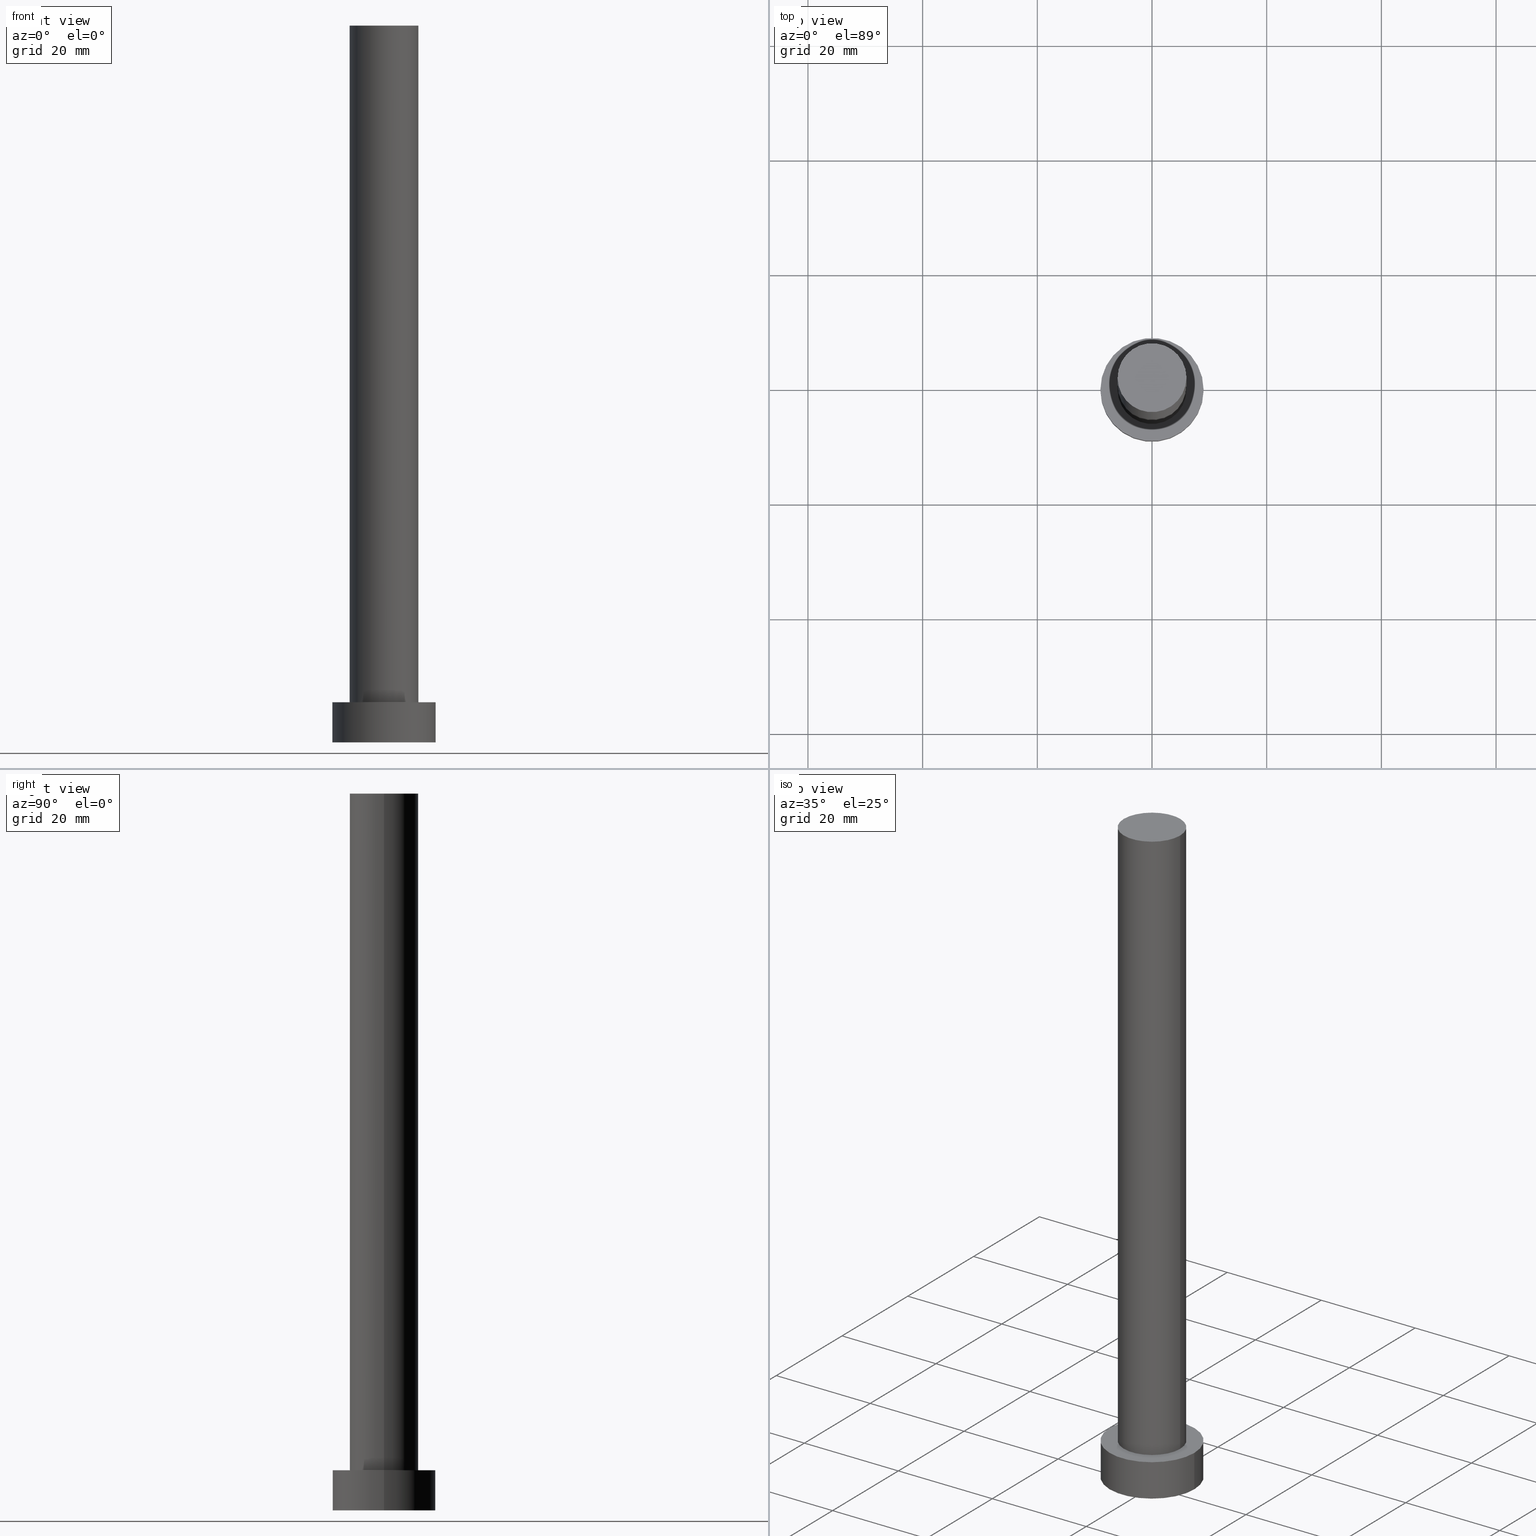
[diagram: canonical four-view strip — front | top / right | iso, engineering-drawing reading convention]
A machine part, canonical four-view strip (front | top / right | iso — engineering-drawing reading convention). The complete STEP part file that produces these views, byte-faithful:
ISO-10303-21;
HEADER;
FILE_DESCRIPTION (( 'STEP AP203' ),
    '1' );
FILE_NAME ('c02a.STEP',
    '2023-02-13T10:14:40',
    ( '' ),
    ( '' ),
    'SwSTEP 2.0',
    'SolidWorks 2019',
    '' );
FILE_SCHEMA (( 'CONFIG_CONTROL_DESIGN' ));
ENDSEC;

DATA;
#1 = CARTESIAN_POINT ( 'NONE',  ( 9.000000000000000000, 1.102182119232617714E-15, 7.000000000000000000 ) ) ;
#2 = MANIFOLD_SOLID_BREP ( 'P�idat vysunut�m3', #211 ) ;
#3 = CARTESIAN_POINT ( 'NONE',  ( -6.000000000000000888, 0.000000000000000000, 125.0000000000000000 ) ) ;
#4 = CC_DESIGN_PERSON_AND_ORGANIZATION_ASSIGNMENT ( #197, #109, ( #71 ) ) ;
#5 = DIRECTION ( 'NONE',  ( -0.000000000000000000, -0.000000000000000000, -1.000000000000000000 ) ) ;
#6 = COORDINATED_UNIVERSAL_TIME_OFFSET ( 1, 0, .AHEAD. ) ;
#7 = AXIS2_PLACEMENT_3D ( 'NONE', #64, #219, #30 ) ;
#8 = APPLICATION_CONTEXT ( 'configuration controlled 3d designs of mechanical parts and assemblies' ) ;
#9 = APPLICATION_PROTOCOL_DEFINITION ( 'international standard', 'config_control_design', 1994, #8 ) ;
#10 = CARTESIAN_POINT ( 'NONE',  ( 0.000000000000000000, 0.000000000000000000, 7.000000000000000000 ) ) ;
#11 = CIRCLE ( 'NONE', #52, 9.000000000000000000 ) ;
#12 = ORIENTED_EDGE ( 'NONE', *, *, #148, .F. ) ;
#13 = ORIENTED_EDGE ( 'NONE', *, *, #222, .F. ) ;
#14 = AXIS2_PLACEMENT_3D ( 'NONE', #198, #194, #84 ) ;
#15 = CARTESIAN_POINT ( 'NONE',  ( 0.000000000000000000, 0.000000000000000000, 0.000000000000000000 ) ) ;
#16 = EDGE_CURVE ( 'NONE', #230, #59, #137, .T. ) ;
#17 = VERTEX_POINT ( 'NONE', #248 ) ;
#18 = AXIS2_PLACEMENT_3D ( 'NONE', #210, #175, #82 ) ;
#19 = CARTESIAN_POINT ( 'NONE',  ( 6.000000000000000888, 7.347880794884120722E-16, 125.0000000000000000 ) ) ;
#20 = CARTESIAN_POINT ( 'NONE',  ( -9.000000000000000000, 0.000000000000000000, 7.000000000000000000 ) ) ;
#21 = DIRECTION ( 'NONE',  ( 1.000000000000000000, 0.000000000000000000, 0.000000000000000000 ) ) ;
#22 = DIRECTION ( 'NONE',  ( -1.000000000000000000, 0.000000000000000000, 0.000000000000000000 ) ) ;
#23 = PERSON_AND_ORGANIZATION_ROLE ( 'design_owner' ) ;
#24 = PERSON_AND_ORGANIZATION ( #111, #236 ) ;
#25 = ADVANCED_FACE ( 'NONE', ( #72 ), #36, .F. ) ;
#26 = FACE_OUTER_BOUND ( 'NONE', #33, .T. ) ;
#27 = PERSON_AND_ORGANIZATION ( #111, #236 ) ;
#28 = DIRECTION ( 'NONE',  ( 1.000000000000000000, 0.000000000000000000, 0.000000000000000000 ) ) ;
#29 = CC_DESIGN_PERSON_AND_ORGANIZATION_ASSIGNMENT ( #68, #112, ( #83 ) ) ;
#30 = DIRECTION ( 'NONE',  ( 1.000000000000000000, 0.000000000000000000, 0.000000000000000000 ) ) ;
#31 = SECURITY_CLASSIFICATION_LEVEL ( 'unclassified' ) ;
#32 = CIRCLE ( 'NONE', #223, 6.000000000000000888 ) ;
#33 = EDGE_LOOP ( 'NONE', ( #186, #13, #206, #157 ) ) ;
#34 = ORIENTED_EDGE ( 'NONE', *, *, #222, .T. ) ;
#35 =( GEOMETRIC_REPRESENTATION_CONTEXT ( 3 ) GLOBAL_UNCERTAINTY_ASSIGNED_CONTEXT ( ( #185 ) ) GLOBAL_UNIT_ASSIGNED_CONTEXT ( ( #85, #162, #242 ) ) REPRESENTATION_CONTEXT ( 'NONE', 'WORKASPACE' ) );
#36 = PLANE ( 'NONE',  #108 ) ;
#37 = EDGE_CURVE ( 'NONE', #95, #153, #11, .T. ) ;
#38 = CALENDAR_DATE ( 2023, 13, 2 ) ;
#39 = ORIENTED_EDGE ( 'NONE', *, *, #148, .T. ) ;
#40 = DIRECTION ( 'NONE',  ( -0.000000000000000000, -0.000000000000000000, -1.000000000000000000 ) ) ;
#41 = AXIS2_PLACEMENT_3D ( 'NONE', #199, #45, #146 ) ;
#42 = DIRECTION ( 'NONE',  ( -0.000000000000000000, -0.000000000000000000, -1.000000000000000000 ) ) ;
#43 = FACE_OUTER_BOUND ( 'NONE', #204, .T. ) ;
#44 = CALENDAR_DATE ( 2023, 13, 2 ) ;
#45 = DIRECTION ( 'NONE',  ( 0.000000000000000000, 0.000000000000000000, 1.000000000000000000 ) ) ;
#46 = CC_DESIGN_PERSON_AND_ORGANIZATION_ASSIGNMENT ( #218, #23, ( #136 ) ) ;
#47 = APPROVAL_PERSON_ORGANIZATION ( #24, #252, #131 ) ;
#48 = ADVANCED_BREP_SHAPE_REPRESENTATION ( 'c02a', ( #2, #7 ), #35 ) ;
#49 = COORDINATED_UNIVERSAL_TIME_OFFSET ( 1, 0, .AHEAD. ) ;
#50 = DIRECTION ( 'NONE',  ( 0.000000000000000000, 0.000000000000000000, 1.000000000000000000 ) ) ;
#51 = EDGE_CURVE ( 'NONE', #59, #184, #215, .T. ) ;
#52 = AXIS2_PLACEMENT_3D ( 'NONE', #15, #54, #203 ) ;
#53 = LOCAL_TIME ( 11, 14, 40.00000000000000000, #144 ) ;
#54 = DIRECTION ( 'NONE',  ( 0.000000000000000000, 0.000000000000000000, 1.000000000000000000 ) ) ;
#55 = ORIENTED_EDGE ( 'NONE', *, *, #100, .F. ) ;
#56 = PRODUCT_RELATED_PRODUCT_CATEGORY ( 'detail', '', ( #136 ) ) ;
#57 = CIRCLE ( 'NONE', #246, 9.000000000000000000 ) ;
#58 = APPROVAL_ROLE ( '' ) ;
#59 = VERTEX_POINT ( 'NONE', #102 ) ;
#60 = ORIENTED_EDGE ( 'NONE', *, *, #135, .T. ) ;
#61 = PERSON_AND_ORGANIZATION ( #111, #236 ) ;
#62 = LINE ( 'NONE', #143, #156 ) ;
#63 = CYLINDRICAL_SURFACE ( 'NONE', #97, 6.000000000000000888 ) ;
#64 = CARTESIAN_POINT ( 'NONE',  ( 0.000000000000000000, 0.000000000000000000, 0.000000000000000000 ) ) ;
#65 = ADVANCED_FACE ( 'NONE', ( #196, #239 ), #124, .T. ) ;
#66 = CARTESIAN_POINT ( 'NONE',  ( 0.000000000000000000, 0.000000000000000000, 125.0000000000000000 ) ) ;
#67 = DATE_TIME_ROLE ( 'creation_date' ) ;
#68 = PERSON_AND_ORGANIZATION ( #111, #236 ) ;
#69 = CYLINDRICAL_SURFACE ( 'NONE', #188, 9.000000000000000000 ) ;
#70 = DIRECTION ( 'NONE',  ( -0.000000000000000000, -0.000000000000000000, -1.000000000000000000 ) ) ;
#71 = PRODUCT_DEFINITION ( 'NEZN�M�', '', #83, #77 ) ;
#72 = FACE_OUTER_BOUND ( 'NONE', #75, .T. ) ;
#73 = SECURITY_CLASSIFICATION ( '', '', #31 ) ;
#74 = CALENDAR_DATE ( 2023, 13, 2 ) ;
#75 = EDGE_LOOP ( 'NONE', ( #250, #117 ) ) ;
#76 = EDGE_LOOP ( 'NONE', ( #228, #55 ) ) ;
#77 = DESIGN_CONTEXT ( 'detailed design', #93, 'design' ) ;
#78 = ORIENTED_EDGE ( 'NONE', *, *, #231, .T. ) ;
#79 = CC_DESIGN_PERSON_AND_ORGANIZATION_ASSIGNMENT ( #164, #244, ( #83 ) ) ;
#80 = DATE_AND_TIME ( #38, #128 ) ;
#81 = CARTESIAN_POINT ( 'NONE',  ( 0.000000000000000000, 0.000000000000000000, 125.0000000000000000 ) ) ;
#82 = DIRECTION ( 'NONE',  ( 1.000000000000000000, 0.000000000000000000, 0.000000000000000000 ) ) ;
#83 = PRODUCT_DEFINITION_FORMATION_WITH_SPECIFIED_SOURCE ( 'LIBOVOLN�', '', #136, .NOT_KNOWN. ) ;
#84 = DIRECTION ( 'NONE',  ( 1.000000000000000000, 0.000000000000000000, -0.000000000000000000 ) ) ;
#85 =( LENGTH_UNIT ( ) NAMED_UNIT ( * ) SI_UNIT ( .MILLI., .METRE. ) );
#86 = VECTOR ( 'NONE', #126, 1000.000000000000000 ) ;
#87 = DIRECTION ( 'NONE',  ( -1.000000000000000000, 0.000000000000000000, 0.000000000000000000 ) ) ;
#88 = CALENDAR_DATE ( 2023, 13, 2 ) ;
#89 = DIRECTION ( 'NONE',  ( 1.000000000000000000, 0.000000000000000000, 0.000000000000000000 ) ) ;
#90 = PERSON_AND_ORGANIZATION_ROLE ( 'classification_officer' ) ;
#91 = CIRCLE ( 'NONE', #123, 9.000000000000000000 ) ;
#92 = EDGE_CURVE ( 'NONE', #153, #95, #57, .T. ) ;
#93 = APPLICATION_CONTEXT ( 'configuration controlled 3d designs of mechanical parts and assemblies' ) ;
#94 = VERTEX_POINT ( 'NONE', #20 ) ;
#95 = VERTEX_POINT ( 'NONE', #122 ) ;
#96 = VECTOR ( 'NONE', #42, 1000.000000000000000 ) ;
#97 = AXIS2_PLACEMENT_3D ( 'NONE', #234, #214, #22 ) ;
#98 = EDGE_LOOP ( 'NONE', ( #207, #60, #116, #251 ) ) ;
#99 = ORIENTED_EDGE ( 'NONE', *, *, #140, .T. ) ;
#100 = EDGE_CURVE ( 'NONE', #184, #59, #119, .T. ) ;
#101 = DATE_AND_TIME ( #74, #229 ) ;
#102 = CARTESIAN_POINT ( 'NONE',  ( -6.000000000000000888, 0.000000000000000000, 7.000000000000000000 ) ) ;
#103 = APPROVAL ( #154, 'NEUR�EN�' ) ;
#104 = DATE_AND_TIME ( #44, #53 ) ;
#105 = CARTESIAN_POINT ( 'NONE',  ( 9.000000000000000000, 1.102182119232617714E-15, 7.000000000000000000 ) ) ;
#106 = CYLINDRICAL_SURFACE ( 'NONE', #165, 6.000000000000000888 ) ;
#107 = APPROVAL_STATUS ( 'not_yet_approved' ) ;
#108 = AXIS2_PLACEMENT_3D ( 'NONE', #151, #189, #224 ) ;
#109 = PERSON_AND_ORGANIZATION_ROLE ( 'creator' ) ;
#110 = CC_DESIGN_SECURITY_CLASSIFICATION ( #73, ( #83 ) ) ;
#111 = PERSON ( 'NEUR�EN�', 'NEUR�EN�', 'NEUR�EN�', ('NEUR�EN�'), ('NEUR�EN�'), ('NEUR�EN�') ) ;
#112 = PERSON_AND_ORGANIZATION_ROLE ( 'design_supplier' ) ;
#113 = ADVANCED_FACE ( 'NONE', ( #174 ), #232, .T. ) ;
#114 = AXIS2_PLACEMENT_3D ( 'NONE', #66, #208, #255 ) ;
#115 = CIRCLE ( 'NONE', #41, 6.000000000000000888 ) ;
#116 = ORIENTED_EDGE ( 'NONE', *, *, #92, .T. ) ;
#117 = ORIENTED_EDGE ( 'NONE', *, *, #92, .F. ) ;
#118 = ORIENTED_EDGE ( 'NONE', *, *, #16, .T. ) ;
#119 = CIRCLE ( 'NONE', #192, 6.000000000000000888 ) ;
#120 = CARTESIAN_POINT ( 'NONE',  ( -6.000000000000000888, 0.000000000000000000, 125.0000000000000000 ) ) ;
#121 = EDGE_CURVE ( 'NONE', #94, #95, #62, .T. ) ;
#122 = CARTESIAN_POINT ( 'NONE',  ( -9.000000000000000000, 0.000000000000000000, 0.000000000000000000 ) ) ;
#123 = AXIS2_PLACEMENT_3D ( 'NONE', #221, #50, #89 ) ;
#124 = PLANE ( 'NONE',  #14 ) ;
#125 = DIRECTION ( 'NONE',  ( 0.000000000000000000, 0.000000000000000000, 1.000000000000000000 ) ) ;
#126 = DIRECTION ( 'NONE',  ( -0.000000000000000000, -0.000000000000000000, -1.000000000000000000 ) ) ;
#127 = APPROVAL_DATE_TIME ( #104, #252 ) ;
#128 = LOCAL_TIME ( 11, 14, 40.00000000000000000, #254 ) ;
#129 = CALENDAR_DATE ( 2023, 13, 2 ) ;
#130 = CC_DESIGN_DATE_AND_TIME_ASSIGNMENT ( #160, #67, ( #71 ) ) ;
#131 = APPROVAL_ROLE ( '' ) ;
#132 = MECHANICAL_CONTEXT ( 'NONE', #8, 'mechanical' ) ;
#133 = APPROVAL_PERSON_ORGANIZATION ( #61, #103, #58 ) ;
#134 = DIRECTION ( 'NONE',  ( -1.000000000000000000, 0.000000000000000000, 0.000000000000000000 ) ) ;
#135 = EDGE_CURVE ( 'NONE', #227, #153, #213, .T. ) ;
#136 = PRODUCT ( 'c02a', 'c02a', '', ( #132 ) ) ;
#137 = LINE ( 'NONE', #120, #163 ) ;
#138 = AXIS2_PLACEMENT_3D ( 'NONE', #245, #182, #28 ) ;
#139 = EDGE_LOOP ( 'NONE', ( #34, #141 ) ) ;
#140 = EDGE_CURVE ( 'NONE', #230, #17, #32, .T. ) ;
#141 = ORIENTED_EDGE ( 'NONE', *, *, #171, .T. ) ;
#142 = DIRECTION ( 'NONE',  ( 0.000000000000000000, 0.000000000000000000, 1.000000000000000000 ) ) ;
#143 = CARTESIAN_POINT ( 'NONE',  ( -9.000000000000000000, 0.000000000000000000, 7.000000000000000000 ) ) ;
#144 = COORDINATED_UNIVERSAL_TIME_OFFSET ( 1, 0, .AHEAD. ) ;
#145 = CARTESIAN_POINT ( 'NONE',  ( 0.000000000000000000, 0.000000000000000000, 7.000000000000000000 ) ) ;
#146 = DIRECTION ( 'NONE',  ( 1.000000000000000000, 0.000000000000000000, 0.000000000000000000 ) ) ;
#147 = LOCAL_TIME ( 11, 14, 40.00000000000000000, #217 ) ;
#148 = EDGE_CURVE ( 'NONE', #17, #184, #159, .T. ) ;
#149 = DIRECTION ( 'NONE',  ( -1.000000000000000000, 0.000000000000000000, 0.000000000000000000 ) ) ;
#150 = PERSON_AND_ORGANIZATION ( #111, #236 ) ;
#151 = CARTESIAN_POINT ( 'NONE',  ( 0.000000000000000000, 0.000000000000000000, 0.000000000000000000 ) ) ;
#152 = LOCAL_TIME ( 11, 14, 40.00000000000000000, #6 ) ;
#153 = VERTEX_POINT ( 'NONE', #158 ) ;
#154 = APPROVAL_STATUS ( 'not_yet_approved' ) ;
#155 = DIRECTION ( 'NONE',  ( -0.000000000000000000, -0.000000000000000000, -1.000000000000000000 ) ) ;
#156 = VECTOR ( 'NONE', #40, 1000.000000000000000 ) ;
#157 = ORIENTED_EDGE ( 'NONE', *, *, #37, .T. ) ;
#158 = CARTESIAN_POINT ( 'NONE',  ( 9.000000000000000000, 1.102182119232617714E-15, 0.000000000000000000 ) ) ;
#159 = LINE ( 'NONE', #19, #86 ) ;
#160 = DATE_AND_TIME ( #129, #147 ) ;
#161 = CARTESIAN_POINT ( 'NONE',  ( 0.000000000000000000, 0.000000000000000000, 0.000000000000000000 ) ) ;
#162 =( NAMED_UNIT ( * ) PLANE_ANGLE_UNIT ( ) SI_UNIT ( $, .RADIAN. ) );
#163 = VECTOR ( 'NONE', #155, 1000.000000000000000 ) ;
#164 = PERSON_AND_ORGANIZATION ( #111, #236 ) ;
#165 = AXIS2_PLACEMENT_3D ( 'NONE', #178, #5, #87 ) ;
#166 = ADVANCED_FACE ( 'NONE', ( #43 ), #63, .T. ) ;
#167 = ORIENTED_EDGE ( 'NONE', *, *, #51, .T. ) ;
#168 = CIRCLE ( 'NONE', #138, 9.000000000000000000 ) ;
#169 = EDGE_LOOP ( 'NONE', ( #12, #173, #118, #167 ) ) ;
#170 = EDGE_LOOP ( 'NONE', ( #99, #78 ) ) ;
#171 = EDGE_CURVE ( 'NONE', #227, #94, #168, .T. ) ;
#172 = ORIENTED_EDGE ( 'NONE', *, *, #100, .T. ) ;
#173 = ORIENTED_EDGE ( 'NONE', *, *, #140, .F. ) ;
#174 = FACE_OUTER_BOUND ( 'NONE', #170, .T. ) ;
#175 = DIRECTION ( 'NONE',  ( 0.000000000000000000, 0.000000000000000000, 1.000000000000000000 ) ) ;
#176 = APPROVAL_STATUS ( 'not_yet_approved' ) ;
#177 = ADVANCED_FACE ( 'NONE', ( #26 ), #69, .T. ) ;
#178 = CARTESIAN_POINT ( 'NONE',  ( 0.000000000000000000, 0.000000000000000000, 125.0000000000000000 ) ) ;
#179 = APPROVAL_ROLE ( '' ) ;
#180 = APPROVAL_DATE_TIME ( #238, #209 ) ;
#181 = CARTESIAN_POINT ( 'NONE',  ( 6.000000000000000888, 7.347880794884120722E-16, 7.000000000000000000 ) ) ;
#182 = DIRECTION ( 'NONE',  ( 0.000000000000000000, 0.000000000000000000, 1.000000000000000000 ) ) ;
#183 = ADVANCED_FACE ( 'NONE', ( #201 ), #106, .T. ) ;
#184 = VERTEX_POINT ( 'NONE', #181 ) ;
#185 = UNCERTAINTY_MEASURE_WITH_UNIT (LENGTH_MEASURE( 1.000000000000000082E-05 ), #85, 'distance_accuracy_value', 'NONE');
#186 = ORIENTED_EDGE ( 'NONE', *, *, #135, .F. ) ;
#187 = CC_DESIGN_DATE_AND_TIME_ASSIGNMENT ( #101, #190, ( #73 ) ) ;
#188 = AXIS2_PLACEMENT_3D ( 'NONE', #145, #220, #134 ) ;
#189 = DIRECTION ( 'NONE',  ( 0.000000000000000000, 0.000000000000000000, 1.000000000000000000 ) ) ;
#190 = DATE_TIME_ROLE ( 'classification_date' ) ;
#191 = CARTESIAN_POINT ( 'NONE',  ( 0.000000000000000000, 0.000000000000000000, 7.000000000000000000 ) ) ;
#192 = AXIS2_PLACEMENT_3D ( 'NONE', #191, #142, #237 ) ;
#193 = CC_DESIGN_APPROVAL ( #252, ( #71 ) ) ;
#194 = DIRECTION ( 'NONE',  ( 0.000000000000000000, 0.000000000000000000, 1.000000000000000000 ) ) ;
#195 = DIRECTION ( 'NONE',  ( 1.000000000000000000, 0.000000000000000000, 0.000000000000000000 ) ) ;
#196 = FACE_BOUND ( 'NONE', #76, .T. ) ;
#197 = PERSON_AND_ORGANIZATION ( #111, #236 ) ;
#198 = CARTESIAN_POINT ( 'NONE',  ( 0.000000000000000000, 0.000000000000000000, 7.000000000000000000 ) ) ;
#199 = CARTESIAN_POINT ( 'NONE',  ( 0.000000000000000000, 0.000000000000000000, 125.0000000000000000 ) ) ;
#200 = CC_DESIGN_APPROVAL ( #209, ( #83 ) ) ;
#201 = FACE_OUTER_BOUND ( 'NONE', #169, .T. ) ;
#202 = ADVANCED_FACE ( 'NONE', ( #247 ), #243, .T. ) ;
#203 = DIRECTION ( 'NONE',  ( 1.000000000000000000, 0.000000000000000000, 0.000000000000000000 ) ) ;
#204 = EDGE_LOOP ( 'NONE', ( #249, #39, #172, #253 ) ) ;
#205 = SHAPE_DEFINITION_REPRESENTATION ( #226, #48 ) ;
#206 = ORIENTED_EDGE ( 'NONE', *, *, #121, .T. ) ;
#207 = ORIENTED_EDGE ( 'NONE', *, *, #171, .F. ) ;
#208 = DIRECTION ( 'NONE',  ( 0.000000000000000000, 0.000000000000000000, 1.000000000000000000 ) ) ;
#209 = APPROVAL ( #107, 'NEUR�EN�' ) ;
#210 = CARTESIAN_POINT ( 'NONE',  ( 0.000000000000000000, 0.000000000000000000, 7.000000000000000000 ) ) ;
#211 = CLOSED_SHELL ( 'NONE', ( #166, #202, #177, #65, #25, #183, #113 ) ) ;
#212 = CC_DESIGN_APPROVAL ( #103, ( #73 ) ) ;
#213 = LINE ( 'NONE', #1, #96 ) ;
#214 = DIRECTION ( 'NONE',  ( -0.000000000000000000, -0.000000000000000000, -1.000000000000000000 ) ) ;
#215 = CIRCLE ( 'NONE', #18, 6.000000000000000888 ) ;
#216 = AXIS2_PLACEMENT_3D ( 'NONE', #10, #70, #149 ) ;
#217 = COORDINATED_UNIVERSAL_TIME_OFFSET ( 1, 0, .AHEAD. ) ;
#218 = PERSON_AND_ORGANIZATION ( #111, #236 ) ;
#219 = DIRECTION ( 'NONE',  ( 0.000000000000000000, 0.000000000000000000, 1.000000000000000000 ) ) ;
#220 = DIRECTION ( 'NONE',  ( -0.000000000000000000, -0.000000000000000000, -1.000000000000000000 ) ) ;
#221 = CARTESIAN_POINT ( 'NONE',  ( 0.000000000000000000, 0.000000000000000000, 7.000000000000000000 ) ) ;
#222 = EDGE_CURVE ( 'NONE', #94, #227, #91, .T. ) ;
#223 = AXIS2_PLACEMENT_3D ( 'NONE', #81, #125, #195 ) ;
#224 = DIRECTION ( 'NONE',  ( 1.000000000000000000, 0.000000000000000000, -0.000000000000000000 ) ) ;
#225 = APPROVAL_PERSON_ORGANIZATION ( #27, #209, #179 ) ;
#226 = PRODUCT_DEFINITION_SHAPE ( 'NONE', 'NONE',  #71 ) ;
#227 = VERTEX_POINT ( 'NONE', #105 ) ;
#228 = ORIENTED_EDGE ( 'NONE', *, *, #51, .F. ) ;
#229 = LOCAL_TIME ( 11, 14, 40.00000000000000000, #49 ) ;
#230 = VERTEX_POINT ( 'NONE', #3 ) ;
#231 = EDGE_CURVE ( 'NONE', #17, #230, #115, .T. ) ;
#232 = PLANE ( 'NONE',  #114 ) ;
#233 = APPROVAL_DATE_TIME ( #80, #103 ) ;
#234 = CARTESIAN_POINT ( 'NONE',  ( 0.000000000000000000, 0.000000000000000000, 125.0000000000000000 ) ) ;
#235 = CC_DESIGN_PERSON_AND_ORGANIZATION_ASSIGNMENT ( #150, #90, ( #73 ) ) ;
#236 = ORGANIZATION ( 'NEUR�EN�', 'NEUR�EN�', '' ) ;
#237 = DIRECTION ( 'NONE',  ( 1.000000000000000000, 0.000000000000000000, 0.000000000000000000 ) ) ;
#238 = DATE_AND_TIME ( #88, #152 ) ;
#239 = FACE_OUTER_BOUND ( 'NONE', #139, .T. ) ;
#240 = APPLICATION_PROTOCOL_DEFINITION ( 'international standard', 'config_control_design', 1994, #93 ) ;
#241 = DIRECTION ( 'NONE',  ( 0.000000000000000000, 0.000000000000000000, 1.000000000000000000 ) ) ;
#242 =( NAMED_UNIT ( * ) SI_UNIT ( $, .STERADIAN. ) SOLID_ANGLE_UNIT ( ) );
#243 = CYLINDRICAL_SURFACE ( 'NONE', #216, 9.000000000000000000 ) ;
#244 = PERSON_AND_ORGANIZATION_ROLE ( 'creator' ) ;
#245 = CARTESIAN_POINT ( 'NONE',  ( 0.000000000000000000, 0.000000000000000000, 7.000000000000000000 ) ) ;
#246 = AXIS2_PLACEMENT_3D ( 'NONE', #161, #241, #21 ) ;
#247 = FACE_OUTER_BOUND ( 'NONE', #98, .T. ) ;
#248 = CARTESIAN_POINT ( 'NONE',  ( 6.000000000000000888, 7.347880794884120722E-16, 125.0000000000000000 ) ) ;
#249 = ORIENTED_EDGE ( 'NONE', *, *, #231, .F. ) ;
#250 = ORIENTED_EDGE ( 'NONE', *, *, #37, .F. ) ;
#251 = ORIENTED_EDGE ( 'NONE', *, *, #121, .F. ) ;
#252 = APPROVAL ( #176, 'NEUR�EN�' ) ;
#253 = ORIENTED_EDGE ( 'NONE', *, *, #16, .F. ) ;
#254 = COORDINATED_UNIVERSAL_TIME_OFFSET ( 1, 0, .AHEAD. ) ;
#255 = DIRECTION ( 'NONE',  ( 1.000000000000000000, 0.000000000000000000, -0.000000000000000000 ) ) ;
ENDSEC;
END-ISO-10303-21;
